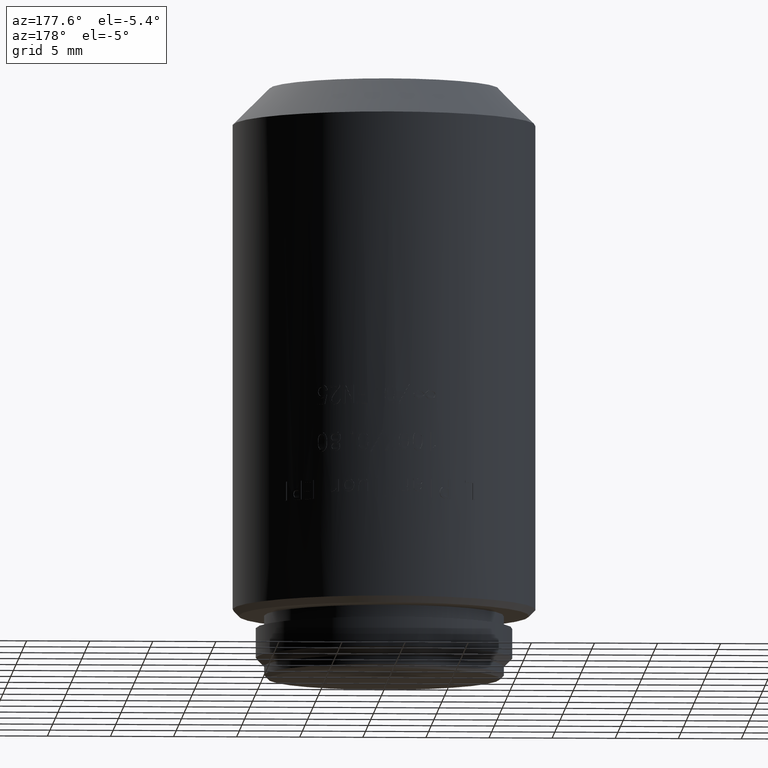
[diagram: clean part render]
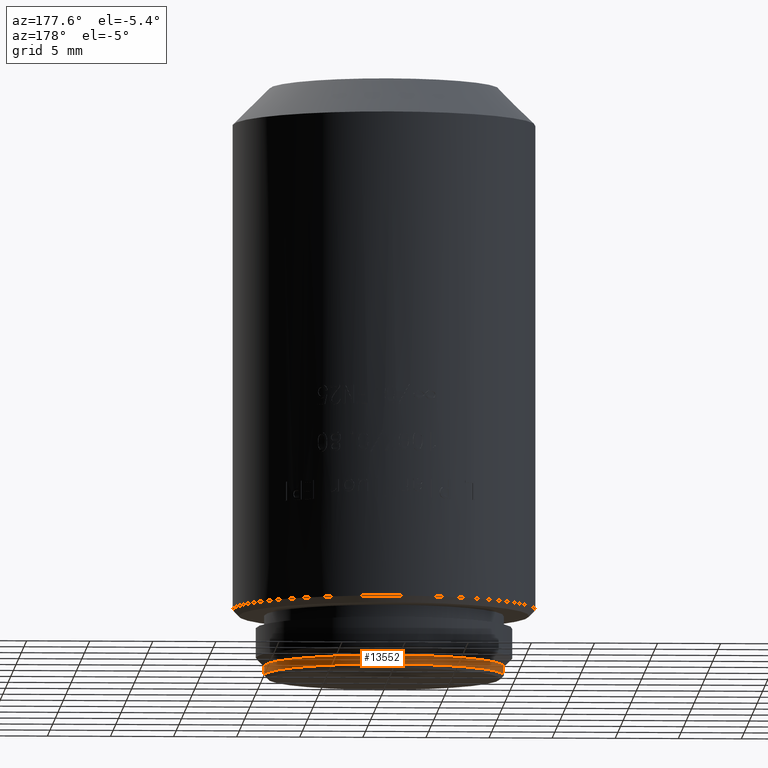
[diagram: same view with one face highlighted and labeled with its STEP entity id]
A machine part, auxiliary view. The second image highlights one B-rep face of the part: STEP entity #13552.
In plain terms, the highlighted cylindrical surface (partial cylindrical patch) has radius 9.5 mm, axis along (0, 0, -1).
Its self-contained STEP definition (entity closure, byte-faithful):
#110 = CARTESIAN_POINT ( 'NONE',  ( -9.500000000000000000, 0.000000000000000000, 1.000000000000000000 ) ) ;
#636 = AXIS2_PLACEMENT_3D ( 'NONE', #20618, #25287, #15185 ) ;
#3886 = CARTESIAN_POINT ( 'NONE',  ( 0.000000000000000000, 0.000000000000000000, 1.000000000000000000 ) ) ;
#4950 = CARTESIAN_POINT ( 'NONE',  ( -9.500000000000000000, 0.000000000000000000, 1.000000000000000000 ) ) ;
#5185 = EDGE_CURVE ( 'NONE', #13633, #8352, #13091, .T. ) ;
#5441 = DIRECTION ( 'NONE',  ( 0.000000000000000000, 0.000000000000000000, -1.000000000000000000 ) ) ;
#5765 = CYLINDRICAL_SURFACE ( 'NONE', #17871, 9.500000000000000000 ) ;
#8221 = ORIENTED_EDGE ( 'NONE', *, *, #5185, .T. ) ;
#8352 = VERTEX_POINT ( 'NONE', #21151 ) ;
#9313 = EDGE_CURVE ( 'NONE', #8352, #10492, #15915, .T. ) ;
#9870 = EDGE_LOOP ( 'NONE', ( #8221, #17157, #16059, #23682 ) ) ;
#10492 = VERTEX_POINT ( 'NONE', #21626 ) ;
#12079 = DIRECTION ( 'NONE',  ( -1.000000000000000000, 0.000000000000000000, 0.000000000000000000 ) ) ;
#12403 = CIRCLE ( 'NONE', #21442, 9.500000000000000000 ) ;
#13091 = CIRCLE ( 'NONE', #636, 9.500000000000000000 ) ;
#13552 = ADVANCED_FACE ( 'NONE', ( #15987 ), #5765, .T. ) ;
#13633 = VERTEX_POINT ( 'NONE', #110 ) ;
#15185 = DIRECTION ( 'NONE',  ( -1.000000000000000000, 0.000000000000000000, 0.000000000000000000 ) ) ;
#15915 = LINE ( 'NONE', #25886, #24883 ) ;
#15987 = FACE_OUTER_BOUND ( 'NONE', #9870, .T. ) ;
#16059 = ORIENTED_EDGE ( 'NONE', *, *, #21610, .T. ) ;
#17157 = ORIENTED_EDGE ( 'NONE', *, *, #9313, .T. ) ;
#17871 = AXIS2_PLACEMENT_3D ( 'NONE', #3886, #24325, #12079 ) ;
#19717 = DIRECTION ( 'NONE',  ( 1.000000000000000000, 0.000000000000000000, 0.000000000000000000 ) ) ;
#19742 = VERTEX_POINT ( 'NONE', #24975 ) ;
#20618 = CARTESIAN_POINT ( 'NONE',  ( 0.000000000000000000, 0.000000000000000000, 1.000000000000000000 ) ) ;
#21151 = CARTESIAN_POINT ( 'NONE',  ( 9.500000000000000000, 1.163414459189985485E-15, 1.000000000000000000 ) ) ;
#21365 = LINE ( 'NONE', #4950, #24000 ) ;
#21442 = AXIS2_PLACEMENT_3D ( 'NONE', #23630, #26399, #19717 ) ;
#21610 = EDGE_CURVE ( 'NONE', #10492, #19742, #12403, .T. ) ;
#21626 = CARTESIAN_POINT ( 'NONE',  ( 9.500000000000000000, 0.000000000000000000, 0.3000000000000069833 ) ) ;
#22146 = EDGE_CURVE ( 'NONE', #13633, #19742, #21365, .T. ) ;
#23241 = DIRECTION ( 'NONE',  ( 0.000000000000000000, 0.000000000000000000, -1.000000000000000000 ) ) ;
#23630 = CARTESIAN_POINT ( 'NONE',  ( 0.000000000000000000, 0.000000000000000000, 0.3000000000000069833 ) ) ;
#23682 = ORIENTED_EDGE ( 'NONE', *, *, #22146, .F. ) ;
#24000 = VECTOR ( 'NONE', #23241, 1000.000000000000000 ) ;
#24325 = DIRECTION ( 'NONE',  ( 0.000000000000000000, 0.000000000000000000, -1.000000000000000000 ) ) ;
#24883 = VECTOR ( 'NONE', #5441, 1000.000000000000000 ) ;
#24975 = CARTESIAN_POINT ( 'NONE',  ( -9.500000000000000000, 1.163414459189985485E-15, 0.3000000000000069833 ) ) ;
#25287 = DIRECTION ( 'NONE',  ( 0.000000000000000000, 0.000000000000000000, -1.000000000000000000 ) ) ;
#25886 = CARTESIAN_POINT ( 'NONE',  ( 9.500000000000000000, 1.163414459189985485E-15, 1.000000000000000000 ) ) ;
#26399 = DIRECTION ( 'NONE',  ( 0.000000000000000000, 0.000000000000000000, 1.000000000000000000 ) ) ;